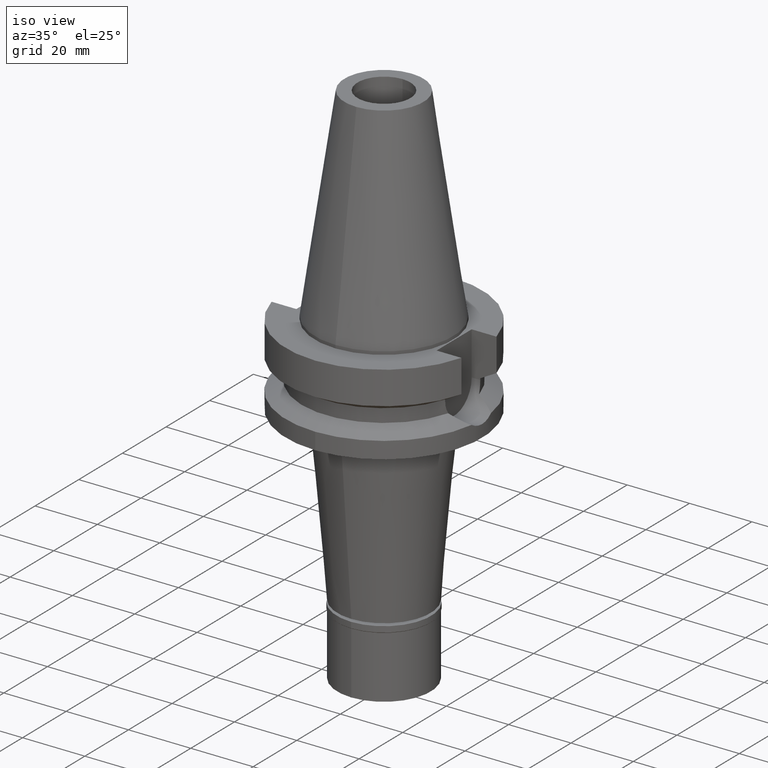
[diagram: clean part render]
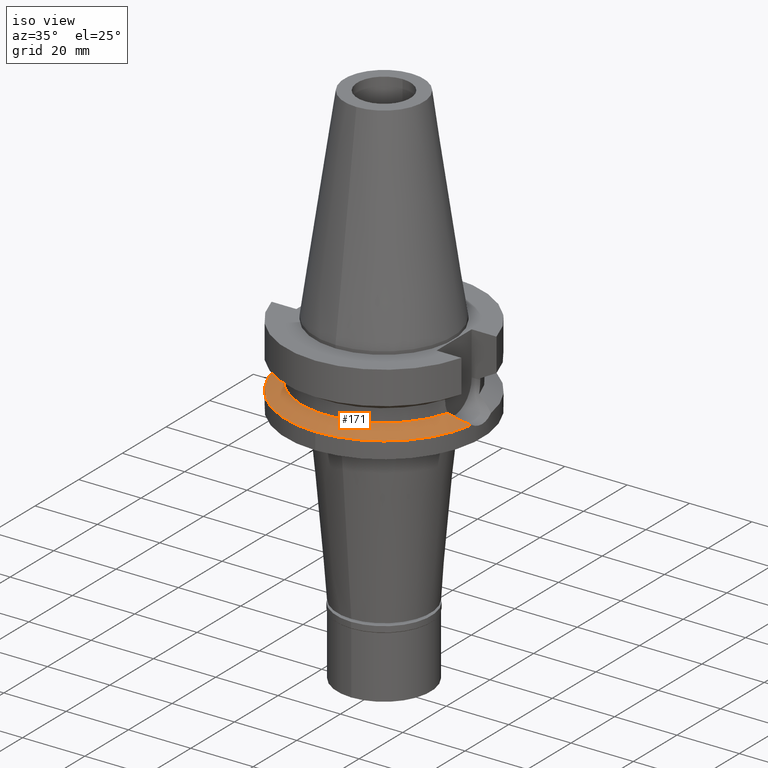
[diagram: same view with one face highlighted and labeled with its STEP entity id]
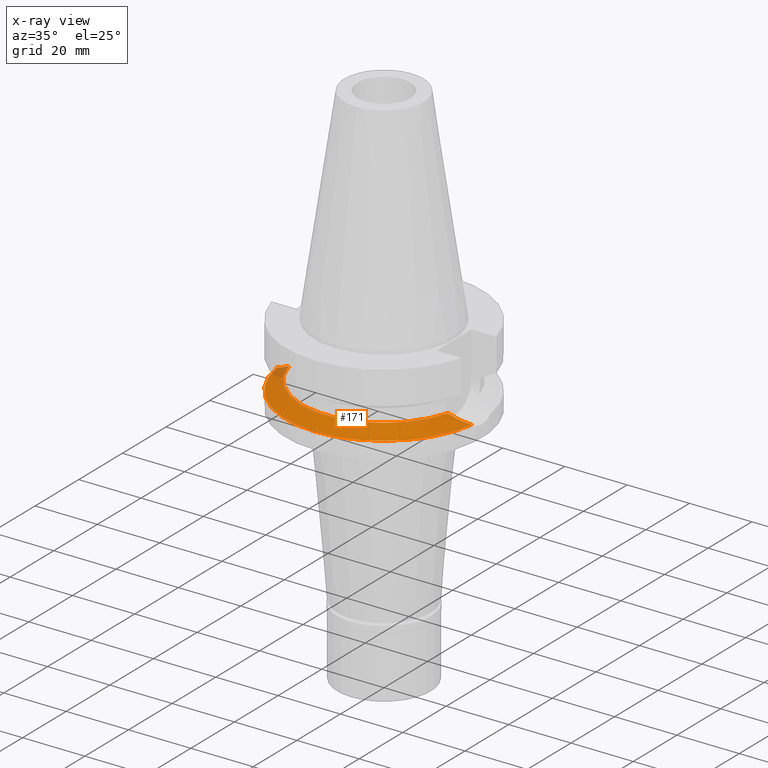
[diagram: x-ray of the same camera — body ghosted, the highlighted face saturated]
A machine part, iso view. The second image highlights one B-rep face of the part: STEP entity #171.
The next image is the same camera in x-ray: the body ghosted, the highlighted face saturated — about 3% of this face is hidden behind the body in this view.
In plain terms, the highlighted conical surface has half-angle 60 deg.
Its self-contained STEP definition (entity closure, byte-faithful):
#30 = CARTESIAN_POINT ( 'NONE',  ( -25.53175183775000079, -7.097862220092999941, -18.74774300138999905 ) ) ;
#68 = CARTESIAN_POINT ( 'NONE',  ( -30.49822227216838755, -4.972651065609727361, -21.28793183650920895 ) ) ;
#88 = CARTESIAN_POINT ( 'NONE',  ( 28.50305473222086761, -6.041666333603841643, -20.26983013936102296 ) ) ;
#98 = VERTEX_POINT ( 'NONE', #731 ) ;
#99 = CARTESIAN_POINT ( 'NONE',  ( -30.85491276307930875, -4.731410132183781592, -21.46950411540202808 ) ) ;
#101 = CARTESIAN_POINT ( 'NONE',  ( 28.50864309581668721, -6.039130999120075671, -20.27268302101677477 ) ) ;
#115 = CARTESIAN_POINT ( 'NONE',  ( -28.95634549940901792, -5.829783326866787796, -20.50136817205541107 ) ) ;
#131 = CARTESIAN_POINT ( 'NONE',  ( -29.91427981895173005, -5.323654264957231597, -20.99025992100829896 ) ) ;
#168 = AXIS2_PLACEMENT_3D ( 'NONE', #2298, #2812, #1080 ) ;
#171 = ADVANCED_FACE ( 'NONE', ( #2988 ), #3140, .T. ) ;
#233 = CARTESIAN_POINT ( 'NONE',  ( 25.53175183775000079, -7.097862220092999941, -18.74774300138999905 ) ) ;
#259 = VERTEX_POINT ( 'NONE', #307 ) ;
#307 = CARTESIAN_POINT ( 'NONE',  ( -31.17899877608999759, -4.485536235554000051, -21.63449434733000132 ) ) ;
#308 = CARTESIAN_POINT ( 'NONE',  ( 30.83533554958475875, -4.746262750229630178, -21.45953747424909963 ) ) ;
#327 = CARTESIAN_POINT ( 'NONE',  ( 28.96951744265465223, -5.822993042047945877, -20.50791940928598933 ) ) ;
#333 = ORIENTED_EDGE ( 'NONE', *, *, #721, .T. ) ;
#359 = CARTESIAN_POINT ( 'NONE',  ( 28.61952987472136201, -5.988409593767684669, -20.32928853261340052 ) ) ;
#379 = DIRECTION ( 'NONE',  ( 0.0000000000000000000, 0.0000000000000000000, -1.000000000000000000 ) ) ;
#397 = AXIS2_PLACEMENT_3D ( 'NONE', #1105, #2773, #3004 ) ;
#405 = EDGE_CURVE ( 'NONE', #915, #259, #2339, .T. ) ;
#506 = ORIENTED_EDGE ( 'NONE', *, *, #2545, .F. ) ;
#537 = CARTESIAN_POINT ( 'NONE',  ( 28.53006094587165009, -6.029395381357314676, -20.28361679709920651 ) ) ;
#570 = CARTESIAN_POINT ( 'NONE',  ( 29.53456838489935521, -5.534047291044670303, -20.79621982321736340 ) ) ;
#589 = CARTESIAN_POINT ( 'NONE',  ( 27.73413391209855305, -6.390229313855593674, -19.87729119561073432 ) ) ;
#607 = CARTESIAN_POINT ( 'NONE',  ( -25.53175183775000079, -7.097862220092999941, -18.74774300138999905 ) ) ;
#642 = CARTESIAN_POINT ( 'NONE',  ( -29.23378766771774551, -5.692344475498301470, -20.64302832027229329 ) ) ;
#721 = EDGE_CURVE ( 'NONE', #98, #2341, #2168, .T. ) ;
#731 = CARTESIAN_POINT ( 'NONE',  ( 31.17899877608999759, -4.485536235554000051, -21.63449434733000132 ) ) ;
#804 = CARTESIAN_POINT ( 'NONE',  ( 29.77069029054985094, -5.403762031502717278, -20.91666183875459950 ) ) ;
#838 = CARTESIAN_POINT ( 'NONE',  ( -29.71148121507111739, -5.438841908908276679, -20.88682261267824103 ) ) ;
#855 = CARTESIAN_POINT ( 'NONE',  ( -29.06793370069313198, -5.774989919560167273, -20.55834678393752313 ) ) ;
#915 = VERTEX_POINT ( 'NONE', #2360 ) ;
#1075 = CARTESIAN_POINT ( 'NONE',  ( 28.73759522508826336, -5.933525848792730706, -20.38955323646145956 ) ) ;
#1080 = DIRECTION ( 'NONE',  ( 0.9898094849552905306, -0.1423979757318985240, 0.0000000000000000000 ) ) ;
#1105 = CARTESIAN_POINT ( 'NONE',  ( 0.0000000000000000000, 0.0000000000000000000, -20.19111867435999841 ) ) ;
#1131 = DIRECTION ( 'NONE',  ( -0.9634623335000935818, -0.2678438573619981722, 0.0000000000000000000 ) ) ;
#1327 = ORIENTED_EDGE ( 'NONE', *, *, #405, .F. ) ;
#1522 = CARTESIAN_POINT ( 'NONE',  ( 28.51721398832023624, -6.035237504180527957, -20.27705846290945857 ) ) ;
#1657 = DIRECTION ( 'NONE',  ( 0.0000000000000000000, -1.000000000000000000, 0.0000000000000000000 ) ) ;
#1802 = CARTESIAN_POINT ( 'NONE',  ( -27.91292627605387011, -6.327668844575878637, -19.96852071600007505 ) ) ;
#1818 = CARTESIAN_POINT ( 'NONE',  ( -31.17899877608999759, -4.485536235554000051, -21.63449434733000132 ) ) ;
#1822 = CARTESIAN_POINT ( 'NONE',  ( 25.53175183775000079, -7.097862220092999941, -18.74774300138999905 ) ) ;
#1845 = EDGE_CURVE ( 'NONE', #98, #915, #2823, .T. ) ;
#1993 = CARTESIAN_POINT ( 'NONE',  ( 28.55997150534223650, -6.015750679437507742, -20.29888577633043312 ) ) ;
#2025 = CARTESIAN_POINT ( 'NONE',  ( -28.90137288117141878, -5.856393695850977466, -20.47329639326756023 ) ) ;
#2103 = CIRCLE ( 'NONE', #2619, 26.49999999999998224 ) ;
#2126 = CARTESIAN_POINT ( 'NONE',  ( 0.0000000000000000000, 0.0000000000000000000, -21.63449434733000132 ) ) ;
#2162 = EDGE_LOOP ( 'NONE', ( #1327, #2898, #333, #2822, #506 ) ) ;
#2168 = B_SPLINE_CURVE_WITH_KNOTS ( 'NONE', 3,
 ( #2507, #308, #2544, #804, #570, #2989, #327, #1075, #359, #1993, #537, #1522, #101, #88, #589, #2958, #1822 ),
 .UNSPECIFIED., .F., .F.,
 ( 4, 2, 2, 1, 1, 1, 1, 1, 2, 2, 4 ),
 ( 0.0000000000000000000, 0.2499999999999278910, 0.3749999999998925859, 0.4374999999998743783, 0.4687499999998654965, 0.4843749999998604450, 0.4921874999998579470, 0.4960937499998566702, 0.4980468749998568367, 0.4999999999998570033, 1.000000000000000000 ),
 .UNSPECIFIED. ) ;
#2298 = CARTESIAN_POINT ( 'NONE',  ( 0.0000000000000000000, 0.0000000000000000000, -21.63449434733000132 ) ) ;
#2339 = CIRCLE ( 'NONE', #2888, 31.50000000000000000 ) ;
#2341 = VERTEX_POINT ( 'NONE', #233 ) ;
#2360 = CARTESIAN_POINT ( 'NONE',  ( 0.0000000000000000000, -31.50000000000000000, -21.63449434733000132 ) ) ;
#2507 = CARTESIAN_POINT ( 'NONE',  ( 31.17899877608999759, -4.485536235554000051, -21.63449434733000132 ) ) ;
#2544 = CARTESIAN_POINT ( 'NONE',  ( 30.44041057306440479, -5.010859520948095280, -21.25820973796909286 ) ) ;
#2545 = EDGE_CURVE ( 'NONE', #259, #2777, #2578, .T. ) ;
#2578 = B_SPLINE_CURVE_WITH_KNOTS ( 'NONE', 3,
 ( #1818, #99, #68, #131, #838, #3018, #642, #855, #115, #2025, #1802, #2789, #607 ),
 .UNSPECIFIED., .F., .F.,
 ( 4, 2, 2, 1, 2, 2, 4 ),
 ( 0.0000000000000000000, 0.2500000000000041078, 0.3750000000000061617, 0.4375000000000075495, 0.4687500000000078826, 0.5000000000000082157, 1.000000000000000000 ),
 .UNSPECIFIED. ) ;
#2619 = AXIS2_PLACEMENT_3D ( 'NONE', #2816, #2856, #1131 ) ;
#2773 = DIRECTION ( 'NONE',  ( 0.0000000000000000000, 0.0000000000000000000, -1.000000000000000000 ) ) ;
#2777 = VERTEX_POINT ( 'NONE', #30 ) ;
#2789 = CARTESIAN_POINT ( 'NONE',  ( -26.80910056756276205, -6.746740942523380191, -19.40397762542978910 ) ) ;
#2812 = DIRECTION ( 'NONE',  ( 0.0000000000000000000, 0.0000000000000000000, -1.000000000000000000 ) ) ;
#2816 = CARTESIAN_POINT ( 'NONE',  ( 0.0000000000000000000, 0.0000000000000000000, -18.74774300138999905 ) ) ;
#2822 = ORIENTED_EDGE ( 'NONE', *, *, #3128, .F. ) ;
#2823 = CIRCLE ( 'NONE', #168, 31.50000000000001421 ) ;
#2856 = DIRECTION ( 'NONE',  ( 0.0000000000000000000, 0.0000000000000000000, 1.000000000000000000 ) ) ;
#2888 = AXIS2_PLACEMENT_3D ( 'NONE', #2126, #379, #1657 ) ;
#2898 = ORIENTED_EDGE ( 'NONE', *, *, #1845, .F. ) ;
#2958 = CARTESIAN_POINT ( 'NONE',  ( 26.74381619295357027, -6.764686498412363136, -19.37043794591426860 ) ) ;
#2988 = FACE_OUTER_BOUND ( 'NONE', #2162, .T. ) ;
#2989 = CARTESIAN_POINT ( 'NONE',  ( 29.16108406474739922, -5.727078292551732730, -20.60566772621288578 ) ) ;
#3004 = DIRECTION ( 'NONE',  ( 0.0000000000000000000, -1.000000000000000000, 0.0000000000000000000 ) ) ;
#3018 = CARTESIAN_POINT ( 'NONE',  ( -29.39505663003762237, -5.608383756552233201, -20.72534610654349407 ) ) ;
#3128 = EDGE_CURVE ( 'NONE', #2777, #2341, #2103, .T. ) ;
#3140 = CONICAL_SURFACE ( 'NONE', #397, 29.00000000000000000, 1.047197551196400456 ) ;